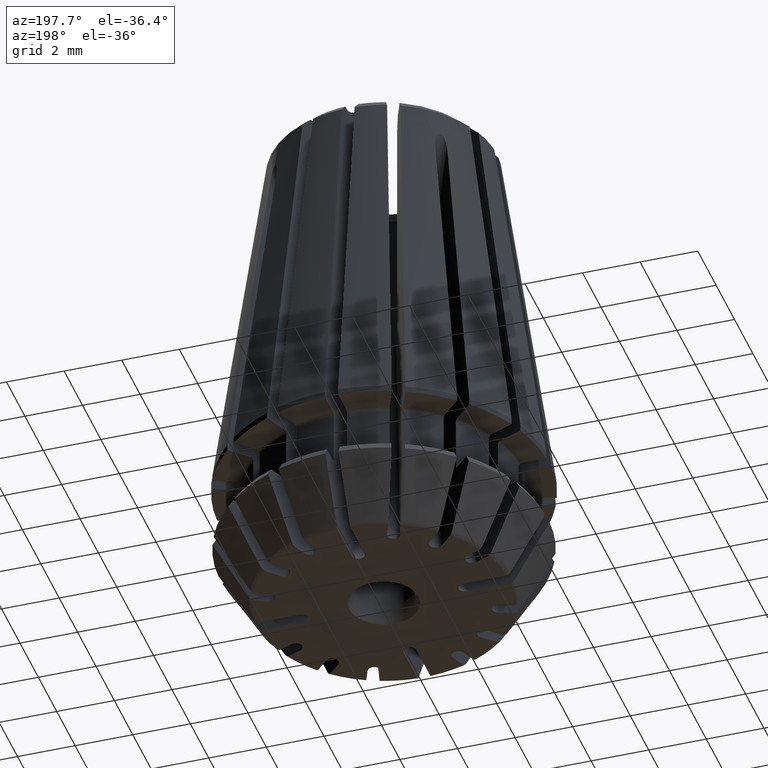
[diagram: clean part render]
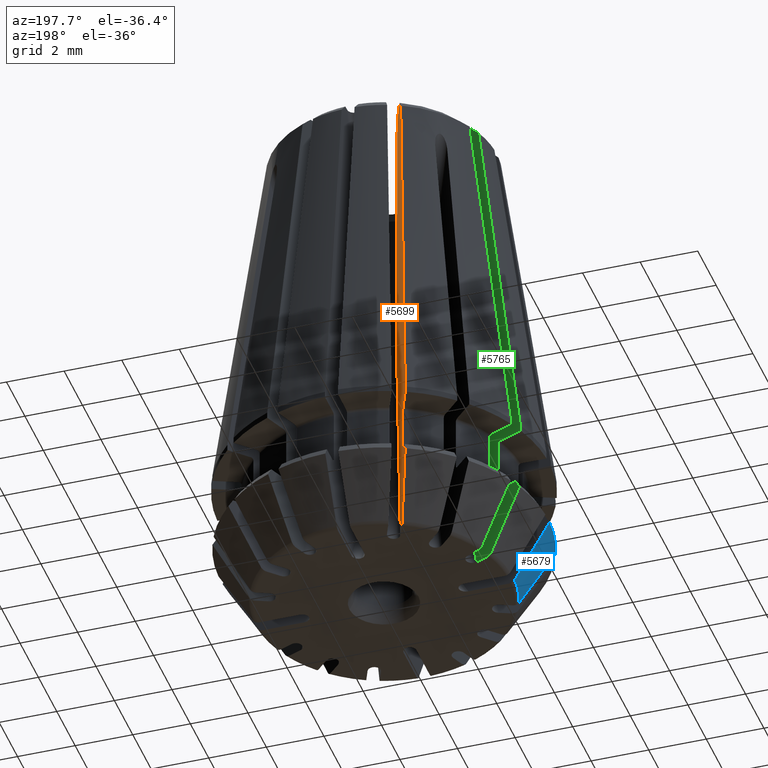
[diagram: same view with three faces highlighted in distinct colors, each labeled with its STEP entity id]
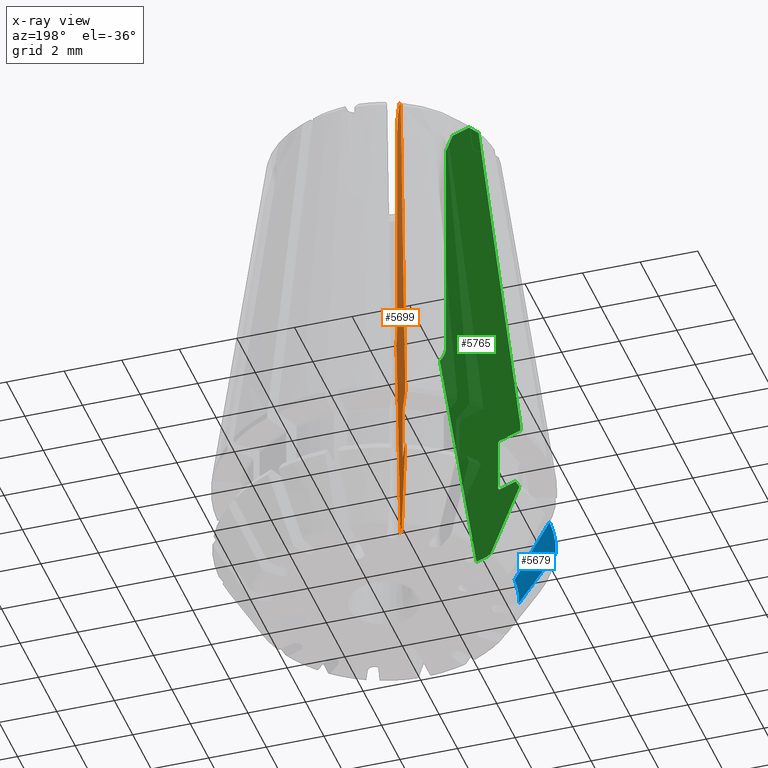
[diagram: x-ray of the same camera — body ghosted, the three highlighted faces saturated]
A machine part, auxiliary view with three faces highlighted in distinct colors.
The next image is the same camera in x-ray (body ghosted, the three faces saturated) — at least one of them is partly hidden behind the body in this view.
Their STEP definitions:

[orange] entity #5699 — the highlighted planar face has unit normal (0.9239, 0.3827, -0).
#166=B_SPLINE_CURVE_WITH_KNOTS('',3,(#8167,#8168,#8169,#8170),
 .UNSPECIFIED.,.F.,.F.,(4,4),(0.,0.000487973895150319),.UNSPECIFIED.);
#178=B_SPLINE_CURVE_WITH_KNOTS('',3,(#8326,#8327,#8328,#8329),
 .UNSPECIFIED.,.F.,.F.,(4,4),(2.33544295323508E-18,0.000217052962285668),
 .UNSPECIFIED.);
#180=B_SPLINE_CURVE_WITH_KNOTS('',3,(#8353,#8354,#8355,#8356),
 .UNSPECIFIED.,.F.,.F.,(4,4),(5.71801277294056E-17,0.000156301684379993),
 .UNSPECIFIED.);
#182=B_SPLINE_CURVE_WITH_KNOTS('',3,(#8374,#8375,#8376,#8377,#8378,#8379,
#8380),.UNSPECIFIED.,.F.,.F.,(4,3,4),(2.01972011447644E-7,0.00686523368727786,
0.0130026657099401),.UNSPECIFIED.);
#330=B_SPLINE_CURVE_WITH_KNOTS('',3,(#10277,#10278,#10279,#10280),
 .UNSPECIFIED.,.F.,.F.,(4,4),(1.24683249835833E-18,0.000156301568180407),
 .UNSPECIFIED.);
#450=LINE('',#8270,#794);
#452=LINE('',#8279,#796);
#456=LINE('',#8308,#800);
#458=LINE('',#8317,#802);
#460=LINE('',#8338,#804);
#462=LINE('',#8347,#806);
#675=LINE('',#10275,#1019);
#676=LINE('',#10282,#1020);
#677=LINE('',#10283,#1021);
#678=LINE('',#10285,#1022);
#794=VECTOR('',#6562,1000.);
#796=VECTOR('',#6570,1000.);
#800=VECTOR('',#6586,1000.);
#802=VECTOR('',#6594,1000.);
#804=VECTOR('',#6606,1000.);
#806=VECTOR('',#6614,1000.);
#1019=VECTOR('',#7703,1000.);
#1020=VECTOR('',#7704,1000.);
#1021=VECTOR('',#7705,1000.);
#1022=VECTOR('',#7706,1000.);
#1157=CIRCLE('',#5862,1653.10953060993);
#1169=CIRCLE('',#5881,11424.6081004694);
#1170=CIRCLE('',#5883,2799.35163323009);
#2415=ORIENTED_EDGE('',*,*,#3378,.F.);
#2416=ORIENTED_EDGE('',*,*,#3367,.T.);
#2417=ORIENTED_EDGE('',*,*,#3371,.T.);
#2418=ORIENTED_EDGE('',*,*,#3374,.T.);
#2419=ORIENTED_EDGE('',*,*,#3996,.T.);
#2420=ORIENTED_EDGE('',*,*,#3997,.T.);
#2421=ORIENTED_EDGE('',*,*,#3998,.T.);
#2422=ORIENTED_EDGE('',*,*,#3360,.T.);
#2423=ORIENTED_EDGE('',*,*,#3382,.F.);
#2424=ORIENTED_EDGE('',*,*,#3379,.T.);
#2425=ORIENTED_EDGE('',*,*,#3343,.T.);
#2426=ORIENTED_EDGE('',*,*,#3354,.F.);
#2427=ORIENTED_EDGE('',*,*,#3347,.F.);
#2428=ORIENTED_EDGE('',*,*,#3309,.F.);
#2429=ORIENTED_EDGE('',*,*,#3999,.T.);
#2430=ORIENTED_EDGE('',*,*,#4000,.T.);
#2431=ORIENTED_EDGE('',*,*,#3364,.T.);
#2432=ORIENTED_EDGE('',*,*,#3356,.T.);
#3309=EDGE_CURVE('',#4222,#4223,#166,.T.);
#3343=EDGE_CURVE('',#4254,#4255,#450,.T.);
#3347=EDGE_CURVE('',#4223,#4258,#452,.T.);
#3354=EDGE_CURVE('',#4258,#4255,#1157,.T.);
#3356=EDGE_CURVE('',#4264,#4265,#456,.T.);
#3360=EDGE_CURVE('',#4268,#4269,#458,.T.);
#3364=EDGE_CURVE('',#4272,#4264,#178,.T.);
#3367=EDGE_CURVE('',#4274,#4275,#460,.T.);
#3371=EDGE_CURVE('',#4275,#4278,#462,.T.);
#3374=EDGE_CURVE('',#4278,#4280,#180,.T.);
#3378=EDGE_CURVE('',#4274,#4265,#1169,.T.);
#3379=EDGE_CURVE('',#4282,#4254,#1170,.T.);
#3382=EDGE_CURVE('',#4282,#4269,#182,.T.);
#3996=EDGE_CURVE('',#4280,#4726,#675,.T.);
#3997=EDGE_CURVE('',#4726,#4727,#330,.T.);
#3998=EDGE_CURVE('',#4727,#4268,#676,.T.);
#3999=EDGE_CURVE('',#4222,#4728,#677,.T.);
#4000=EDGE_CURVE('',#4728,#4272,#678,.T.);
#4222=VERTEX_POINT('',#8166);
#4223=VERTEX_POINT('',#8171);
#4254=VERTEX_POINT('',#8271);
#4255=VERTEX_POINT('',#8272);
#4258=VERTEX_POINT('',#8280);
#4264=VERTEX_POINT('',#8309);
#4265=VERTEX_POINT('',#8310);
#4268=VERTEX_POINT('',#8318);
#4269=VERTEX_POINT('',#8319);
#4272=VERTEX_POINT('',#8330);
#4274=VERTEX_POINT('',#8339);
#4275=VERTEX_POINT('',#8340);
#4278=VERTEX_POINT('',#8348);
#4280=VERTEX_POINT('',#8357);
#4282=VERTEX_POINT('',#8369);
#4726=VERTEX_POINT('',#10276);
#4727=VERTEX_POINT('',#10281);
#4728=VERTEX_POINT('',#10284);
#5035=EDGE_LOOP('',(#2415,#2416,#2417,#2418,#2419,#2420,#2421,#2422,#2423,
#2424,#2425,#2426,#2427,#2428,#2429,#2430,#2431,#2432));
#5329=FACE_BOUND('',#5035,.T.);
#5467=PLANE('',#6313);
#5699=ADVANCED_FACE('',(#5329),#5467,.T.);
#5862=AXIS2_PLACEMENT_3D('',#8305,#6580,#6581);
#5881=AXIS2_PLACEMENT_3D('',#8366,#6626,#6627);
#5883=AXIS2_PLACEMENT_3D('',#8368,#6630,#6631);
#6313=AXIS2_PLACEMENT_3D('',#10274,#7701,#7702);
#6562=DIRECTION('',(0.38268343236509,-0.923879532511287,0.));
#6570=DIRECTION('',(0.,0.,1.));
#6580=DIRECTION('',(0.923879532537311,0.382683432302262,3.93819704201985E-11));
#6581=DIRECTION('',(-0.33107742120227,0.799291600667381,-0.501518372816621));
#6586=DIRECTION('',(-0.246167994774466,0.59430211160647,0.765641115986341));
#6594=DIRECTION('',(0.,0.,1.));
#6606=DIRECTION('',(0.191457829311009,-0.462220088145138,0.865850154305361));
#6614=DIRECTION('',(0.38268343236509,-0.923879532511287,0.));
#6626=DIRECTION('',(-0.923879532489869,-0.382683432416796,3.24051635278231E-11));
#6627=DIRECTION('',(-0.331351145224826,0.799952428540639,-0.500282450851647));
#6630=DIRECTION('',(0.923879532456718,0.382683432496831,1.43118273948899E-10));
#6631=DIRECTION('',(-0.270375335562259,0.65274380151765,0.707688284133546));
#7701=DIRECTION('',(0.923879532511287,0.38268343236509,-1.23259516440783E-32));
#7702=DIRECTION('',(0.38268343236509,-0.923879532511287,0.));
#7703=DIRECTION('',(0.,0.,1.));
#7704=DIRECTION('',(-0.38268343236509,0.923879532511287,0.));
#7705=DIRECTION('',(-0.066452280653524,0.160429997204361,-0.984807753012208));
#7706=DIRECTION('',(-0.38268343236509,0.923879532511287,-3.59445166682828E-16));
#8166=CARTESIAN_POINT('',(-1.05907254413342,1.9688739653895,4.52370092555848));
#8167=CARTESIAN_POINT('',(-1.05907254413342,1.9688739653895,4.52370092555848));
#8168=CARTESIAN_POINT('',(-1.11850500307244,2.11235661380526,4.57939864444956));
#8169=CARTESIAN_POINT('',(-1.1606989278303,2.21422175920544,4.73499130534405));
#8170=CARTESIAN_POINT('',(-1.16069892783034,2.21422175920554,4.89999999999975));
#8171=CARTESIAN_POINT('',(-1.16069892783012,2.214221759205,4.89999999999988));
#8270=CARTESIAN_POINT('',(-2.50397348900558,5.45717342278558,13.5));
#8271=CARTESIAN_POINT('',(-1.54449442151255,3.14078604523081,13.5));
#8272=CARTESIAN_POINT('',(-1.27157341973512,2.48189646128329,13.5));
#8279=CARTESIAN_POINT('',(-1.1606989278299,2.21422175920447,60.));
#8280=CARTESIAN_POINT('',(-1.1606989278299,2.21422175920447,13.));
#8305=CARTESIAN_POINT('',(546.146541431401,-1319.10234104051,842.064801879141));
#8308=CARTESIAN_POINT('',(-1.91278476871892,4.02991759634752,-4.40231937685541));
#8309=CARTESIAN_POINT('',(-1.91009123694959,4.02341483541934,-4.41069690242165));
#8310=CARTESIAN_POINT('',(-1.91547830048824,4.03642035727571,-4.39394185128918));
#8317=CARTESIAN_POINT('',(-2.39509977930997,5.19432903625257,60.));
#8318=CARTESIAN_POINT('',(-2.39509977930997,5.19432903625257,-2.03287907341032E-17));
#8319=CARTESIAN_POINT('',(-2.39509977930997,5.19432903625257,0.213985362388708));
#8326=CARTESIAN_POINT('',(-1.83670518901107,3.84624524319718,-4.5));
#8327=CARTESIAN_POINT('',(-1.86479109033183,3.91405060707724,-4.5));
#8328=CARTESIAN_POINT('',(-1.89202407909925,3.97979685790351,-4.4668898418198));
#8329=CARTESIAN_POINT('',(-1.91009123694965,4.02341483541948,-4.41069690242184));
#8330=CARTESIAN_POINT('',(-1.83670518901107,3.84624524319718,-4.5));
#8338=CARTESIAN_POINT('',(-2.34779437556144,5.08012368894934,-2.14641016151377));
#8339=CARTESIAN_POINT('',(-2.38016876687283,5.15828238352684,-2.29282032302753));
#8340=CARTESIAN_POINT('',(-2.31541998425006,5.00196499437183,-2.));
#8347=CARTESIAN_POINT('',(0.599323274179234,-2.03484771096373,-2.));
#8348=CARTESIAN_POINT('',(-2.06188921355887,4.38988756929024,-2.));
#8353=CARTESIAN_POINT('',(-2.06188921355885,4.38988756929019,-2.));
#8354=CARTESIAN_POINT('',(-2.04166424366395,4.34106017267133,-1.99999999999994));
#8355=CARTESIAN_POINT('',(-2.02357875346547,4.29739793695201,-1.95285202223366));
#8356=CARTESIAN_POINT('',(-2.02357875346545,4.29739793695196,-1.9000000000001));
#8357=CARTESIAN_POINT('',(-2.02357875346554,4.29739793695217,-1.90000000000005));
#8366=CARTESIAN_POINT('',(3783.1768090685,-9133.98471271204,5713.23812019939));
#8368=CARTESIAN_POINT('',(755.173808609429,-1823.73880255015,-1967.97872688543));
#8369=CARTESIAN_POINT('',(-1.70182858191348,3.52062430909532,13.0896271216148));
#8374=CARTESIAN_POINT('',(-1.70182858191348,3.52062430909532,13.0896271216148));
#8375=CARTESIAN_POINT('',(-1.82390236505163,3.81533649195763,10.8236261179301));
#8376=CARTESIAN_POINT('',(-1.94592945714111,4.10993595265702,8.55760793787163));
#8377=CARTESIAN_POINT('',(-2.067932892595,4.40447830118589,6.291581063667));
#8378=CARTESIAN_POINT('',(-2.17700562859866,4.66780317973108,4.26572211872968));
#8379=CARTESIAN_POINT('',(-2.28605869873753,4.93108058067876,2.23985594353853));
#8380=CARTESIAN_POINT('',(-2.39509977930997,5.19432903625257,0.213985362388711));
#10274=CARTESIAN_POINT('',(-0.207872894815042,-0.0861037722821463,3.47459412311985E-47));
#10275=CARTESIAN_POINT('',(-2.02357875346562,4.29739793695237,60.));
#10276=CARTESIAN_POINT('',(-2.02357875346562,4.29739793695237,-0.100000000000003));
#10277=CARTESIAN_POINT('',(-2.02357875346562,4.29739793695237,-0.100000000000002));
#10278=CARTESIAN_POINT('',(-2.02357875346562,4.29739793695237,-0.047148990526125));
#10279=CARTESIAN_POINT('',(-2.04166463346765,4.34106111374072,4.39174116734967E-13));
#10280=CARTESIAN_POINT('',(-2.06188921355885,4.38988756929019,4.98371964784455E-13));
#10281=CARTESIAN_POINT('',(-2.06188921355889,4.3898875692903,-1.01643953670516E-17));
#10282=CARTESIAN_POINT('',(0.502393160807579,-1.80083771665952,-2.03287907341032E-17));
#10283=CARTESIAN_POINT('',(-1.66533214981707,3.43251412774995,-4.46092916002495));
#10284=CARTESIAN_POINT('',(-1.66796854906906,3.43887895857993,-4.5));
#10285=CARTESIAN_POINT('',(-1.58053648731002,3.227799289295,-4.5));

[blue] entity #5679 — the highlighted conical surface has half-angle 30 deg.
#93=CONICAL_SURFACE('',#6277,5.85,0.523598775598299);
#1400=CIRCLE('',#6263,4.46785702773388);
#1404=CIRCLE('',#6270,5.68094010767586);
#1408=CIRCLE('',#6278,11424.6081009176);
#1409=CIRCLE('',#6279,11568.0267808078);
#2248=ORIENTED_EDGE('',*,*,#3922,.F.);
#2249=ORIENTED_EDGE('',*,*,#3910,.F.);
#2250=ORIENTED_EDGE('',*,*,#3923,.F.);
#2251=ORIENTED_EDGE('',*,*,#3900,.F.);
#3900=EDGE_CURVE('',#4665,#4666,#1400,.T.);
#3910=EDGE_CURVE('',#4674,#4675,#1404,.T.);
#3922=EDGE_CURVE('',#4675,#4665,#1408,.T.);
#3923=EDGE_CURVE('',#4666,#4674,#1409,.T.);
#4665=VERTEX_POINT('',#10011);
#4666=VERTEX_POINT('',#10013);
#4674=VERTEX_POINT('',#10039);
#4675=VERTEX_POINT('',#10041);
#5014=EDGE_LOOP('',(#2248,#2249,#2250,#2251));
#5308=FACE_BOUND('',#5014,.T.);
#5679=ADVANCED_FACE('',(#5308),#93,.T.);
#6263=AXIS2_PLACEMENT_3D('',#10012,#7549,#7550);
#6270=AXIS2_PLACEMENT_3D('',#10040,#7567,#7568);
#6277=AXIS2_PLACEMENT_3D('',#10092,#7584,#7585);
#6278=AXIS2_PLACEMENT_3D('',#10093,#7586,#7587);
#6279=AXIS2_PLACEMENT_3D('',#10094,#7588,#7589);
#7549=DIRECTION('',(0.,0.,-1.));
#7550=DIRECTION('',(-1.,0.,0.));
#7567=DIRECTION('',(0.,0.,1.));
#7568=DIRECTION('',(1.,0.,0.));
#7584=DIRECTION('',(0.,0.,1.));
#7585=DIRECTION('',(1.,0.,0.));
#7586=DIRECTION('',(0.382683432386266,-0.923879532502516,1.33279301601106E-11));
#7587=DIRECTION('',(-0.799952428555239,-0.331351145189573,-0.50028245085165));
#7588=DIRECTION('',(-5.97398434995888E-12,1.,-3.45299082434506E-12));
#7589=DIRECTION('',(-0.865756640627248,-6.90011844470184E-12,-0.500465222777589));
#10011=CARTESIAN_POINT('',(-4.20862790184,-1.49973251085816,-4.39394185128918));
#10012=CARTESIAN_POINT('',(0.,0.,-4.39394185128918));
#10013=CARTESIAN_POINT('',(-4.46218796335061,-0.225,-4.39394185128918));
#10039=CARTESIAN_POINT('',(-5.67648267036906,-0.225,-2.29282032302753));
#10040=CARTESIAN_POINT('',(0.,0.,-2.29282032302753));
#10041=CARTESIAN_POINT('',(-5.33048992809113,-1.96442297724275,-2.29282032302753));
#10092=CARTESIAN_POINT('',(0.,0.,-2.));
#10093=CARTESIAN_POINT('',(9133.81250569277,3783.59255460386,5713.23812042363));
#10094=CARTESIAN_POINT('',(10010.6338164748,-0.224999920179245,5785.00115810279));

[green] entity #5765 — the highlighted planar face has unit normal (0.3827, 0.9239, 0).
#231=B_SPLINE_CURVE_WITH_KNOTS('',3,(#9104,#9105,#9106,#9107),
 .UNSPECIFIED.,.F.,.F.,(4,4),(3.80553418091739E-18,0.000217052962285666),
 .UNSPECIFIED.);
#233=B_SPLINE_CURVE_WITH_KNOTS('',3,(#9131,#9132,#9133,#9134),
 .UNSPECIFIED.,.F.,.F.,(4,4),(5.71801277294056E-17,0.000156301684380017),
 .UNSPECIFIED.);
#236=B_SPLINE_CURVE_WITH_KNOTS('',3,(#9163,#9164,#9165,#9166),
 .UNSPECIFIED.,.F.,.F.,(4,4),(4.47028007668187E-19,0.000487973895150327),
 .UNSPECIFIED.);
#238=B_SPLINE_CURVE_WITH_KNOTS('',3,(#9181,#9182,#9183,#9184,#9185,#9186,
#9187),.UNSPECIFIED.,.F.,.F.,(4,3,4),(2.01972011447644E-7,0.00686523368727786,
0.0130026657099401),.UNSPECIFIED.);
#348=B_SPLINE_CURVE_WITH_KNOTS('',3,(#10493,#10494,#10495,#10496),
 .UNSPECIFIED.,.F.,.F.,(4,4),(9.48676900924816E-19,0.000156301568180407),
 .UNSPECIFIED.);
#527=LINE('',#9044,#871);
#533=LINE('',#9079,#877);
#534=LINE('',#9086,#878);
#536=LINE('',#9095,#880);
#538=LINE('',#9116,#882);
#540=LINE('',#9125,#884);
#729=LINE('',#10481,#1073);
#731=LINE('',#10487,#1075);
#762=LINE('',#10668,#1106);
#763=LINE('',#10670,#1107);
#871=VECTOR('',#6993,1000.);
#877=VECTOR('',#7009,1000.);
#878=VECTOR('',#7020,1000.);
#880=VECTOR('',#7028,1000.);
#882=VECTOR('',#7040,1000.);
#884=VECTOR('',#7048,1000.);
#1073=VECTOR('',#7817,1000.);
#1075=VECTOR('',#7823,1000.);
#1106=VECTOR('',#7994,1000.);
#1107=VECTOR('',#7995,1000.);
#1270=CIRCLE('',#6041,1653.10954264892);
#1281=CIRCLE('',#6060,11424.6081003889);
#1282=CIRCLE('',#6062,2799.35157610939);
#2892=ORIENTED_EDGE('',*,*,#3626,.F.);
#2893=ORIENTED_EDGE('',*,*,#3612,.T.);
#2894=ORIENTED_EDGE('',*,*,#3616,.T.);
#2895=ORIENTED_EDGE('',*,*,#3619,.T.);
#2896=ORIENTED_EDGE('',*,*,#4076,.T.);
#2897=ORIENTED_EDGE('',*,*,#4082,.T.);
#2898=ORIENTED_EDGE('',*,*,#4079,.T.);
#2899=ORIENTED_EDGE('',*,*,#3605,.T.);
#2900=ORIENTED_EDGE('',*,*,#3630,.F.);
#2901=ORIENTED_EDGE('',*,*,#3627,.T.);
#2902=ORIENTED_EDGE('',*,*,#3586,.T.);
#2903=ORIENTED_EDGE('',*,*,#3600,.F.);
#2904=ORIENTED_EDGE('',*,*,#3597,.F.);
#2905=ORIENTED_EDGE('',*,*,#3623,.F.);
#2906=ORIENTED_EDGE('',*,*,#4150,.T.);
#2907=ORIENTED_EDGE('',*,*,#4151,.T.);
#2908=ORIENTED_EDGE('',*,*,#3609,.T.);
#2909=ORIENTED_EDGE('',*,*,#3601,.T.);
#3586=EDGE_CURVE('',#4440,#4439,#527,.T.);
#3597=EDGE_CURVE('',#4450,#4451,#533,.T.);
#3600=EDGE_CURVE('',#4451,#4439,#1270,.T.);
#3601=EDGE_CURVE('',#4452,#4453,#534,.T.);
#3605=EDGE_CURVE('',#4456,#4457,#536,.T.);
#3609=EDGE_CURVE('',#4460,#4452,#231,.T.);
#3612=EDGE_CURVE('',#4462,#4463,#538,.T.);
#3616=EDGE_CURVE('',#4463,#4466,#540,.T.);
#3619=EDGE_CURVE('',#4466,#4468,#233,.T.);
#3623=EDGE_CURVE('',#4470,#4450,#236,.T.);
#3626=EDGE_CURVE('',#4462,#4453,#1281,.T.);
#3627=EDGE_CURVE('',#4471,#4440,#1282,.T.);
#3630=EDGE_CURVE('',#4471,#4457,#238,.T.);
#4076=EDGE_CURVE('',#4468,#4767,#729,.T.);
#4079=EDGE_CURVE('',#4769,#4456,#731,.T.);
#4082=EDGE_CURVE('',#4767,#4769,#348,.T.);
#4150=EDGE_CURVE('',#4470,#4797,#762,.T.);
#4151=EDGE_CURVE('',#4797,#4460,#763,.T.);
#4439=VERTEX_POINT('',#9043);
#4440=VERTEX_POINT('',#9045);
#4450=VERTEX_POINT('',#9078);
#4451=VERTEX_POINT('',#9080);
#4452=VERTEX_POINT('',#9087);
#4453=VERTEX_POINT('',#9088);
#4456=VERTEX_POINT('',#9096);
#4457=VERTEX_POINT('',#9097);
#4460=VERTEX_POINT('',#9108);
#4462=VERTEX_POINT('',#9117);
#4463=VERTEX_POINT('',#9118);
#4466=VERTEX_POINT('',#9126);
#4468=VERTEX_POINT('',#9135);
#4470=VERTEX_POINT('',#9162);
#4471=VERTEX_POINT('',#9176);
#4767=VERTEX_POINT('',#10482);
#4769=VERTEX_POINT('',#10488);
#4797=VERTEX_POINT('',#10669);
#5101=EDGE_LOOP('',(#2892,#2893,#2894,#2895,#2896,#2897,#2898,#2899,#2900,
#2901,#2902,#2903,#2904,#2905,#2906,#2907,#2908,#2909));
#5395=FACE_BOUND('',#5101,.T.);
#5497=PLANE('',#6415);
#5765=ADVANCED_FACE('',(#5395),#5497,.T.);
#6041=AXIS2_PLACEMENT_3D('',#9084,#7016,#7017);
#6060=AXIS2_PLACEMENT_3D('',#9173,#7062,#7063);
#6062=AXIS2_PLACEMENT_3D('',#9175,#7066,#7067);
#6415=AXIS2_PLACEMENT_3D('',#10667,#7992,#7993);
#6993=DIRECTION('',(0.923879532511287,-0.38268343236509,0.));
#7009=DIRECTION('',(0.,0.,1.));
#7016=DIRECTION('',(0.382683432373661,0.923879532507736,5.39914110591121E-12));
#7017=DIRECTION('',(-0.799291600633756,0.33107742128502,-0.501518372815583));
#7020=DIRECTION('',(-0.594302111606472,0.246167994774457,0.765641115986342));
#7028=DIRECTION('',(0.,0.,1.));
#7040=DIRECTION('',(0.462220088145148,-0.191457829311013,0.865850154305355));
#7048=DIRECTION('',(0.923879532511287,-0.38268343236509,0.));
#7062=DIRECTION('',(-0.382683432390335,-0.92387953250083,-1.59412498000945E-11));
#7063=DIRECTION('',(-0.799952428553281,0.331351145194305,-0.500282450851647));
#7066=DIRECTION('',(0.382683432544219,0.923879532437089,-1.94212835259465E-10));
#7067=DIRECTION('',(-0.652743801491398,0.270375335629748,0.707688284131976));
#7817=DIRECTION('',(0.,0.,1.));
#7823=DIRECTION('',(-0.923879532511287,0.38268343236509,0.));
#7992=DIRECTION('',(0.38268343236509,0.923879532511287,0.));
#7993=DIRECTION('',(0.923879532511287,-0.38268343236509,0.));
#7994=DIRECTION('',(-0.160429997204361,0.0664522806535238,-0.984807753012208));
#7995=DIRECTION('',(-0.923879532511287,0.38268343236509,-3.59445166682827E-16));
#9043=CARTESIAN_POINT('',(-2.65410400584758,0.85582763010504,13.5));
#9044=CARTESIAN_POINT('',(-5.62938096734987,2.0882276993755,13.5));
#9045=CARTESIAN_POINT('',(-3.3129935897951,1.12874863188247,13.5));
#9078=CARTESIAN_POINT('',(-2.3864293037693,0.744953138200036,4.89999999999988));
#9079=CARTESIAN_POINT('',(-2.38642930376876,0.744953138199814,60.));
#9080=CARTESIAN_POINT('',(-2.38642930376876,0.744953138199814,13.));
#9084=CARTESIAN_POINT('',(1318.93014306302,-546.562291343663,842.064807915199));
#9086=CARTESIAN_POINT('',(-4.20212514091181,1.49703897908883,-4.40231937685541));
#9087=CARTESIAN_POINT('',(-4.19562237998363,1.49434544731951,-4.41069690242165));
#9088=CARTESIAN_POINT('',(-4.20862790184,1.49973251085816,-4.39394185128918));
#9095=CARTESIAN_POINT('',(-5.36653658081686,1.9793539896799,60.));
#9096=CARTESIAN_POINT('',(-5.36653658081686,1.9793539896799,-2.03287907341032E-17));
#9097=CARTESIAN_POINT('',(-5.36653658081687,1.9793539896799,0.213985362388708));
#9104=CARTESIAN_POINT('',(-4.01845278776147,1.42095939938098,-4.5));
#9105=CARTESIAN_POINT('',(-4.08625815164153,1.44904530070175,-4.5));
#9106=CARTESIAN_POINT('',(-4.15200440246779,1.47627828946917,-4.4668898418198));
#9107=CARTESIAN_POINT('',(-4.19562237998377,1.49434544731957,-4.41069690242184));
#9108=CARTESIAN_POINT('',(-4.01845278776147,1.42095939938098,-4.5));
#9116=CARTESIAN_POINT('',(-5.25233123351363,1.93204858593136,-2.14641016151376));
#9117=CARTESIAN_POINT('',(-5.33048992809113,1.96442297724274,-2.29282032302753));
#9118=CARTESIAN_POINT('',(-5.17417253893612,1.89967419461998,-2.));
#9125=CARTESIAN_POINT('',(4.6185802740753,-2.15661683349662,-2.));
#9126=CARTESIAN_POINT('',(-4.56209511385453,1.64614342392879,-2.));
#9131=CARTESIAN_POINT('',(-4.56209511385448,1.64614342392877,-2.));
#9132=CARTESIAN_POINT('',(-4.51326771723561,1.62591845403386,-1.99999999999994));
#9133=CARTESIAN_POINT('',(-4.4696054815163,1.60783296383539,-1.95285202223367));
#9134=CARTESIAN_POINT('',(-4.46960548151625,1.60783296383537,-1.9000000000001));
#9135=CARTESIAN_POINT('',(-4.46960548151666,1.60783296383554,-1.9));
#9162=CARTESIAN_POINT('',(-2.14108150995379,0.643326754503335,4.52370092555848));
#9163=CARTESIAN_POINT('',(-2.14108150995379,0.643326754503334,4.52370092555848));
#9164=CARTESIAN_POINT('',(-2.28456415836955,0.702759213442355,4.57939864444956));
#9165=CARTESIAN_POINT('',(-2.38642930376974,0.744953138200219,4.73499130534405));
#9166=CARTESIAN_POINT('',(-2.38642930376983,0.744953138200259,4.89999999999975));
#9173=CARTESIAN_POINT('',(9133.81250524751,-3783.59255448276,5713.23812015913));
#9175=CARTESIAN_POINT('',(1823.56655764692,-755.589539143958,-1967.97868645738));
#9176=CARTESIAN_POINT('',(-3.69283185365962,1.2860827922834,13.0896271216148));
#9181=CARTESIAN_POINT('',(-3.69283185365961,1.2860827922834,13.0896271216148));
#9182=CARTESIAN_POINT('',(-3.98754403652192,1.40815657542155,10.8236261179301));
#9183=CARTESIAN_POINT('',(-4.28214349722131,1.53018366751103,8.55760793787163));
#9184=CARTESIAN_POINT('',(-4.57668584575018,1.65218710296492,6.291581063667));
#9185=CARTESIAN_POINT('',(-4.84001072429537,1.76125983896858,4.26572211872968));
#9186=CARTESIAN_POINT('',(-5.10328812524305,1.87031290910745,2.23985594353853));
#9187=CARTESIAN_POINT('',(-5.36653658081686,1.97935398967989,0.213985362388705));
#10481=CARTESIAN_POINT('',(-4.46960548151666,1.60783296383554,60.));
#10482=CARTESIAN_POINT('',(-4.46960548151666,1.60783296383554,-0.100000000000003));
#10487=CARTESIAN_POINT('',(4.05363017209523,-1.92260683919242,-2.03287907341032E-17));
#10488=CARTESIAN_POINT('',(-4.56209511385459,1.64614342392881,-1.01643953670516E-17));
#10493=CARTESIAN_POINT('',(-4.46960548151666,1.60783296383554,-0.100000000000002));
#10494=CARTESIAN_POINT('',(-4.46960548151666,1.60783296383554,-4.71489905261246E-02));
#10495=CARTESIAN_POINT('',(-4.51326865830501,1.62591884383757,4.38939413770539E-13));
#10496=CARTESIAN_POINT('',(-4.56209511385449,1.64614342392877,4.98369003891452E-13));
#10667=CARTESIAN_POINT('',(-0.0861037722821452,-0.20787289481504,0.));
#10668=CARTESIAN_POINT('',(-2.79382809522598,0.913703242915803,0.516782586532433));
#10669=CARTESIAN_POINT('',(-3.61108650314421,1.25222275943897,-4.5));
#10670=CARTESIAN_POINT('',(-3.40000683385929,1.16479069767993,-4.5));